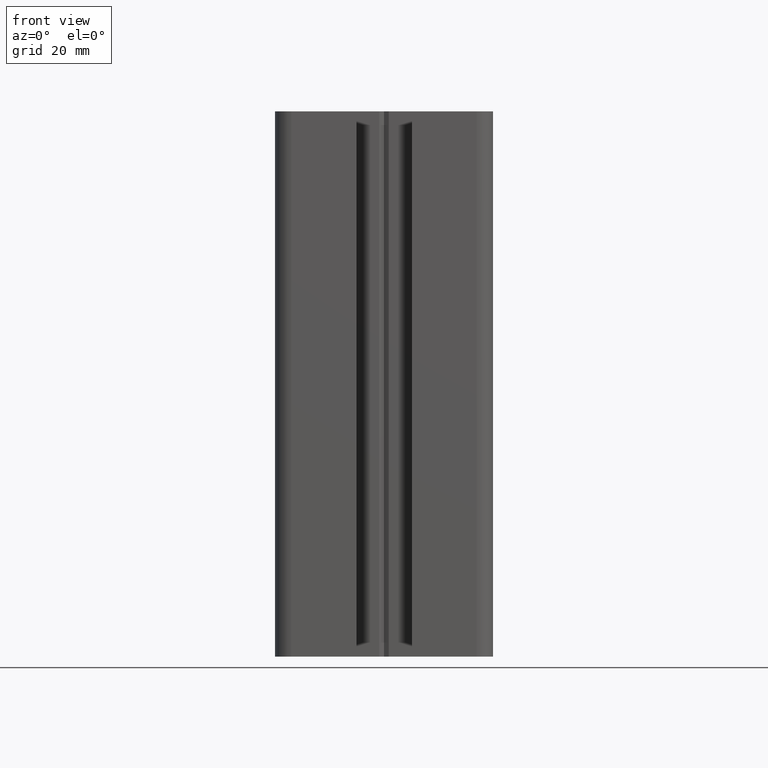
[diagram: clean part render]
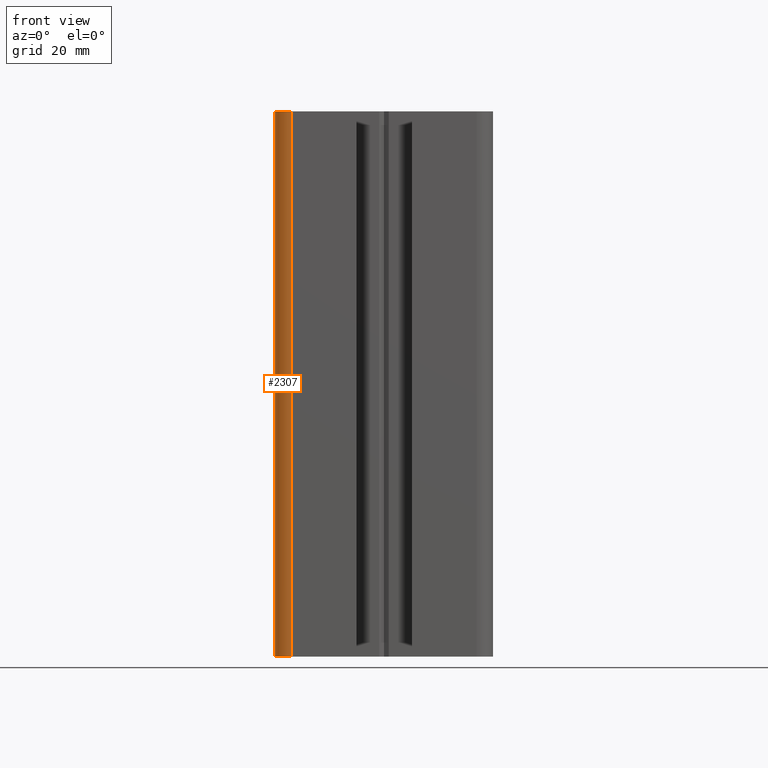
[diagram: same view with one face highlighted and labeled with its STEP entity id]
A machine part, front view. The second image highlights one B-rep face of the part: STEP entity #2307.
In plain terms, the highlighted cylindrical surface (edge-blend (fillet) strip) has radius 3 mm, axis along (-0, -0, -1).
Its self-contained STEP definition (entity closure, byte-faithful):
#1591 = EDGE_CURVE ( 'NONE', #1669, #1603, #5934, .T. ) ;
#1603 = VERTEX_POINT ( 'NONE', #5935 ) ;
#1669 = VERTEX_POINT ( 'NONE', #6040 ) ;
#2306 = EDGE_CURVE ( 'NONE', #2909, #1603, #6847, .T. ) ;
#2307 = ADVANCED_FACE ( 'NONE', ( #7139 ), #7138, .T. ) ;
#2309 = ORIENTED_EDGE ( 'NONE', *, *, #1591, .T. ) ;
#2311 = ORIENTED_EDGE ( 'NONE', *, *, #2903, .F. ) ;
#2314 = ORIENTED_EDGE ( 'NONE', *, *, #2328, .T. ) ;
#2320 = EDGE_LOOP ( 'NONE', ( #2309, #2331, #2311, #2314 ) ) ;
#2328 = EDGE_CURVE ( 'NONE', #2923, #1669, #7161, .T. ) ;
#2331 = ORIENTED_EDGE ( 'NONE', *, *, #2306, .F. ) ;
#2903 = EDGE_CURVE ( 'NONE', #2923, #2909, #8017, .T. ) ;
#2909 = VERTEX_POINT ( 'NONE', #8000 ) ;
#2923 = VERTEX_POINT ( 'NONE', #8041 ) ;
#5891 = CARTESIAN_POINT ( 'NONE',  ( -16.99998123708388300, -37.00000862079354400, 0.0000000000000000000 ) ) ;
#5932 = DIRECTION ( 'NONE',  ( 1.000000000000000000, 0.0000000000000000000, 0.0000000000000000000 ) ) ;
#5933 = DIRECTION ( 'NONE',  ( 0.0000000000000000000, 0.0000000000000000000, 1.000000000000000000 ) ) ;
#5934 = CIRCLE ( 'NONE', #5942, 2.999999999999999100 ) ;
#5935 = CARTESIAN_POINT ( 'NONE',  ( -16.99997971576653900, -40.00000862079315300, 0.0000000000000000000 ) ) ;
#5942 = AXIS2_PLACEMENT_3D ( 'NONE', #5891, #5933, #5932 ) ;
#6040 = CARTESIAN_POINT ( 'NONE',  ( -19.99998123708350000, -37.00001014211088800, 0.0000000000000000000 ) ) ;
#6843 = DIRECTION ( 'NONE',  ( -0.0000000000000000000, -0.0000000000000000000, -1.000000000000000000 ) ) ;
#6844 = VECTOR ( 'NONE', #6843, 1000.000000000000000 ) ;
#6845 = CARTESIAN_POINT ( 'NONE',  ( -16.99997971576653900, -40.00000862079315300, 100.0000000000000000 ) ) ;
#6847 = LINE ( 'NONE', #6845, #6844 ) ;
#7129 = DIRECTION ( 'NONE',  ( -1.000000000000000000, 0.0000000000000000000, 0.0000000000000000000 ) ) ;
#7130 = DIRECTION ( 'NONE',  ( -0.0000000000000000000, -0.0000000000000000000, -1.000000000000000000 ) ) ;
#7131 = CARTESIAN_POINT ( 'NONE',  ( -16.99998123708388300, -37.00000862079354400, 100.0000000000000000 ) ) ;
#7137 = AXIS2_PLACEMENT_3D ( 'NONE', #7131, #7130, #7129 ) ;
#7138 = CYLINDRICAL_SURFACE ( 'NONE', #7137, 2.999999999999999100 ) ;
#7139 = FACE_OUTER_BOUND ( 'NONE', #2320, .T. ) ;
#7158 = DIRECTION ( 'NONE',  ( -0.0000000000000000000, -0.0000000000000000000, -1.000000000000000000 ) ) ;
#7159 = VECTOR ( 'NONE', #7158, 1000.000000000000000 ) ;
#7160 = CARTESIAN_POINT ( 'NONE',  ( -19.99998123708350000, -37.00001014211088800, 100.0000000000000000 ) ) ;
#7161 = LINE ( 'NONE', #7160, #7159 ) ;
#8000 = CARTESIAN_POINT ( 'NONE',  ( -16.99997971576653900, -40.00000862079315300, 100.0000000000000000 ) ) ;
#8006 = DIRECTION ( 'NONE',  ( 1.000000000000000000, 0.0000000000000000000, 0.0000000000000000000 ) ) ;
#8007 = DIRECTION ( 'NONE',  ( 0.0000000000000000000, 0.0000000000000000000, 1.000000000000000000 ) ) ;
#8008 = CARTESIAN_POINT ( 'NONE',  ( -16.99998123708388300, -37.00000862079354400, 100.0000000000000000 ) ) ;
#8009 = AXIS2_PLACEMENT_3D ( 'NONE', #8008, #8007, #8006 ) ;
#8017 = CIRCLE ( 'NONE', #8009, 2.999999999999999100 ) ;
#8041 = CARTESIAN_POINT ( 'NONE',  ( -19.99998123708350000, -37.00001014211088800, 100.0000000000000000 ) ) ;